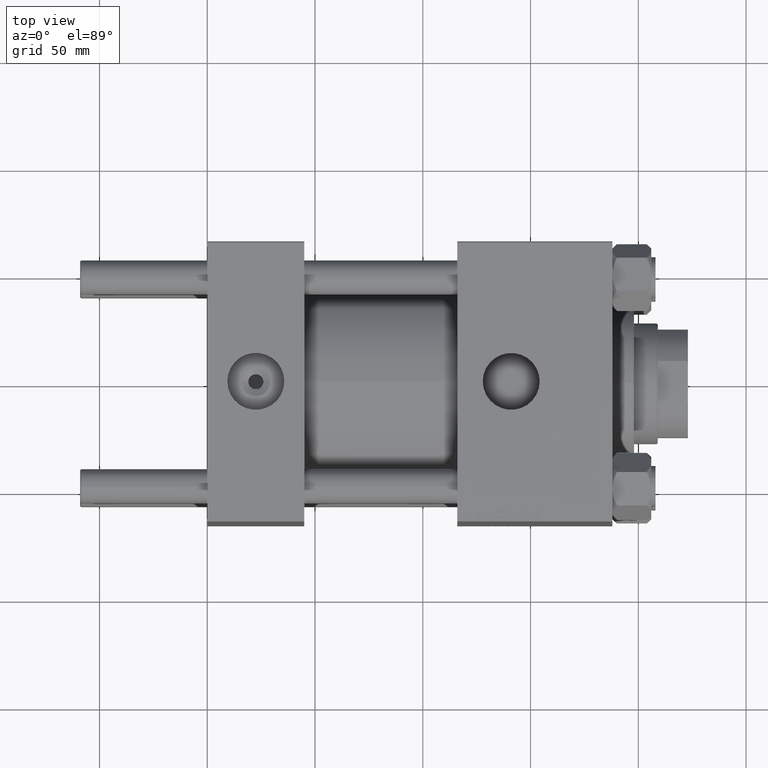
[diagram: clean part render]
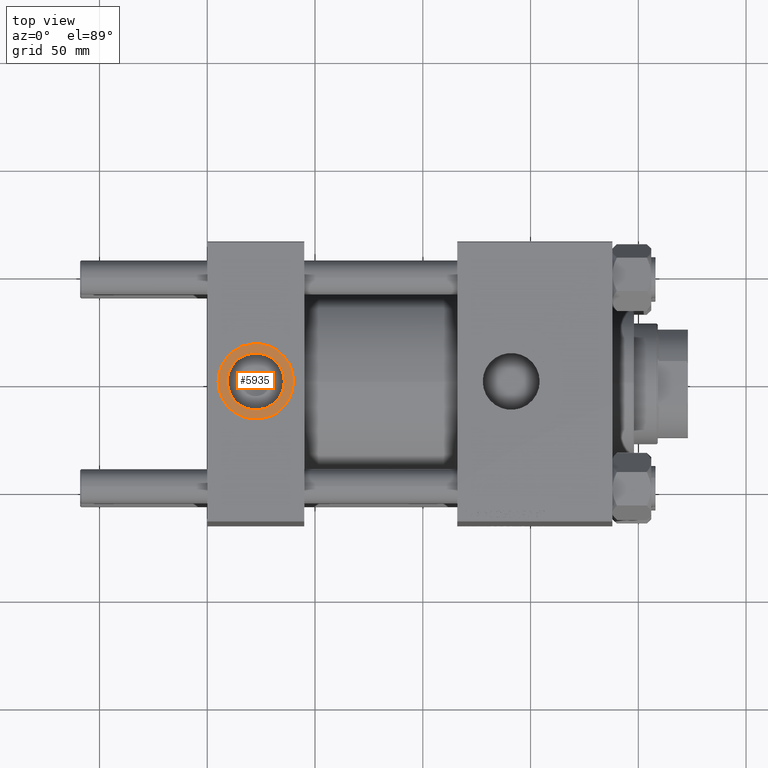
[diagram: same view with one face highlighted and labeled with its STEP entity id]
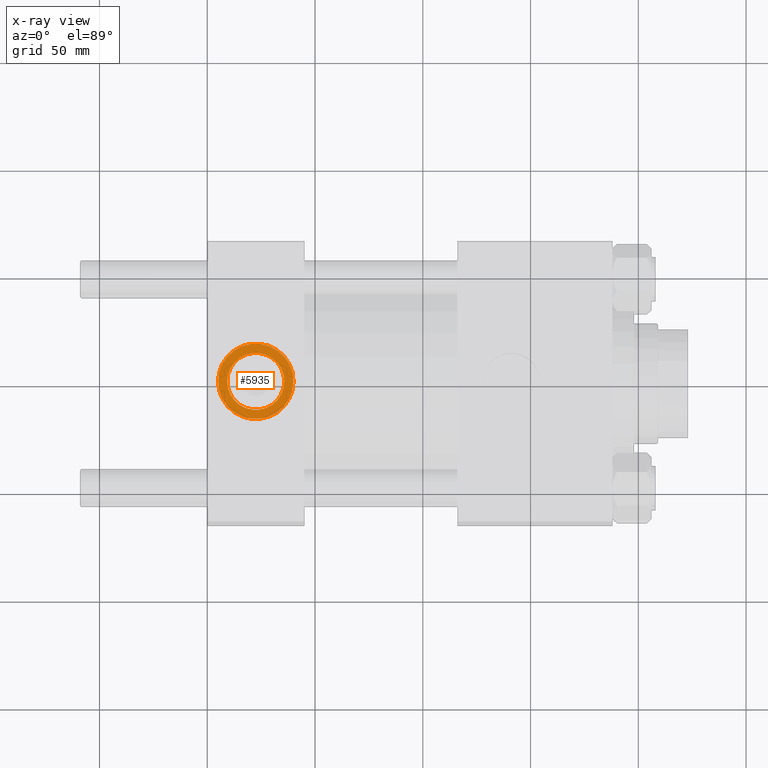
[diagram: x-ray of the same camera — body ghosted, the highlighted face saturated]
A machine part, top view. The second image highlights one B-rep face of the part: STEP entity #5935.
The next image is the same camera in x-ray: the body ghosted, the highlighted face saturated — about 0% of this face is hidden behind the body in this view.
In plain terms, the highlighted planar face has unit normal (0, 0, 1).
Its self-contained STEP definition (entity closure, byte-faithful):
#1079 = PLANE ( 'NONE',  #24089 ) ;
#1348 = CARTESIAN_POINT ( 'NONE',  ( 22.50000000000000000, -8.673617379884035472E-15, 64.79999999999999716 ) ) ;
#2220 = AXIS2_PLACEMENT_3D ( 'NONE', #45980, #21824, #9364 ) ;
#3207 = ORIENTED_EDGE ( 'NONE', *, *, #45408, .T. ) ;
#4622 = ORIENTED_EDGE ( 'NONE', *, *, #23473, .F. ) ;
#4999 = DIRECTION ( 'NONE',  ( 0.000000000000000000, 0.000000000000000000, 1.000000000000000000 ) ) ;
#5935 = ADVANCED_FACE ( 'NONE', ( #32930, #37437 ), #1079, .T. ) ;
#6784 = AXIS2_PLACEMENT_3D ( 'NONE', #1348, #46193, #34513 ) ;
#8491 = CIRCLE ( 'NONE', #6784, 13.22000000000000242 ) ;
#8797 = CARTESIAN_POINT ( 'NONE',  ( 22.50000000000000000, -8.673617379884035472E-15, 64.79999999999999716 ) ) ;
#9364 = DIRECTION ( 'NONE',  ( 1.000000000000000000, 0.000000000000000000, 0.000000000000000000 ) ) ;
#9676 = DIRECTION ( 'NONE',  ( 0.000000000000000000, 0.000000000000000000, 1.000000000000000000 ) ) ;
#13647 = CARTESIAN_POINT ( 'NONE',  ( 22.50000000000000000, -8.673617379884035472E-15, 64.79999999999999716 ) ) ;
#13731 = DIRECTION ( 'NONE',  ( 1.000000000000000000, 0.000000000000000000, 0.000000000000000000 ) ) ;
#15057 = CARTESIAN_POINT ( 'NONE',  ( 9.279999999999994031, -7.054634311411234321E-15, 64.79999999999999716 ) ) ;
#17470 = CARTESIAN_POINT ( 'NONE',  ( 22.50000000000000000, -8.673617379884035472E-15, 64.79999999999999716 ) ) ;
#17611 = CIRCLE ( 'NONE', #24373, 17.50000000000000000 ) ;
#20854 = VERTEX_POINT ( 'NONE', #15057 ) ;
#20987 = DIRECTION ( 'NONE',  ( 0.000000000000000000, 0.000000000000000000, 1.000000000000000000 ) ) ;
#21824 = DIRECTION ( 'NONE',  ( 0.000000000000000000, 0.000000000000000000, 1.000000000000000000 ) ) ;
#23473 = EDGE_CURVE ( 'NONE', #20854, #51760, #8491, .T. ) ;
#24089 = AXIS2_PLACEMENT_3D ( 'NONE', #8797, #20987, #37185 ) ;
#24373 = AXIS2_PLACEMENT_3D ( 'NONE', #13647, #9676, #30103 ) ;
#24588 = EDGE_LOOP ( 'NONE', ( #25107, #3207 ) ) ;
#25107 = ORIENTED_EDGE ( 'NONE', *, *, #49560, .T. ) ;
#26616 = EDGE_LOOP ( 'NONE', ( #49994, #4622 ) ) ;
#29415 = VERTEX_POINT ( 'NONE', #46086 ) ;
#30103 = DIRECTION ( 'NONE',  ( 1.000000000000000000, 0.000000000000000000, 0.000000000000000000 ) ) ;
#32930 = FACE_BOUND ( 'NONE', #26616, .T. ) ;
#34047 = VERTEX_POINT ( 'NONE', #47395 ) ;
#34513 = DIRECTION ( 'NONE',  ( 1.000000000000000000, 0.000000000000000000, 0.000000000000000000 ) ) ;
#37185 = DIRECTION ( 'NONE',  ( 1.000000000000000000, 0.000000000000000000, -0.000000000000000000 ) ) ;
#37437 = FACE_OUTER_BOUND ( 'NONE', #24588, .T. ) ;
#37797 = CIRCLE ( 'NONE', #2220, 17.50000000000000000 ) ;
#38642 = AXIS2_PLACEMENT_3D ( 'NONE', #17470, #4999, #13731 ) ;
#41170 = CIRCLE ( 'NONE', #38642, 13.22000000000000242 ) ;
#44432 = EDGE_CURVE ( 'NONE', #51760, #20854, #41170, .T. ) ;
#45408 = EDGE_CURVE ( 'NONE', #29415, #34047, #37797, .T. ) ;
#45549 = CARTESIAN_POINT ( 'NONE',  ( 35.71999999999999886, -8.673617379884035472E-15, 64.79999999999999716 ) ) ;
#45980 = CARTESIAN_POINT ( 'NONE',  ( 22.50000000000000000, -8.673617379884035472E-15, 64.79999999999999716 ) ) ;
#46086 = CARTESIAN_POINT ( 'NONE',  ( 4.999999999999997335, -6.530485481376167224E-15, 64.79999999999999716 ) ) ;
#46193 = DIRECTION ( 'NONE',  ( 0.000000000000000000, 0.000000000000000000, 1.000000000000000000 ) ) ;
#47395 = CARTESIAN_POINT ( 'NONE',  ( 40.00000000000000000, -8.673617379884035472E-15, 64.79999999999999716 ) ) ;
#49560 = EDGE_CURVE ( 'NONE', #34047, #29415, #17611, .T. ) ;
#49994 = ORIENTED_EDGE ( 'NONE', *, *, #44432, .F. ) ;
#51760 = VERTEX_POINT ( 'NONE', #45549 ) ;